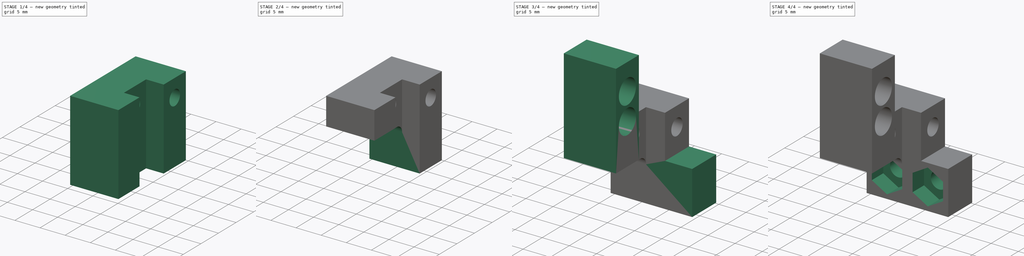
[diagram: build sequence overview — one tinted view per stage of 4, left to right]
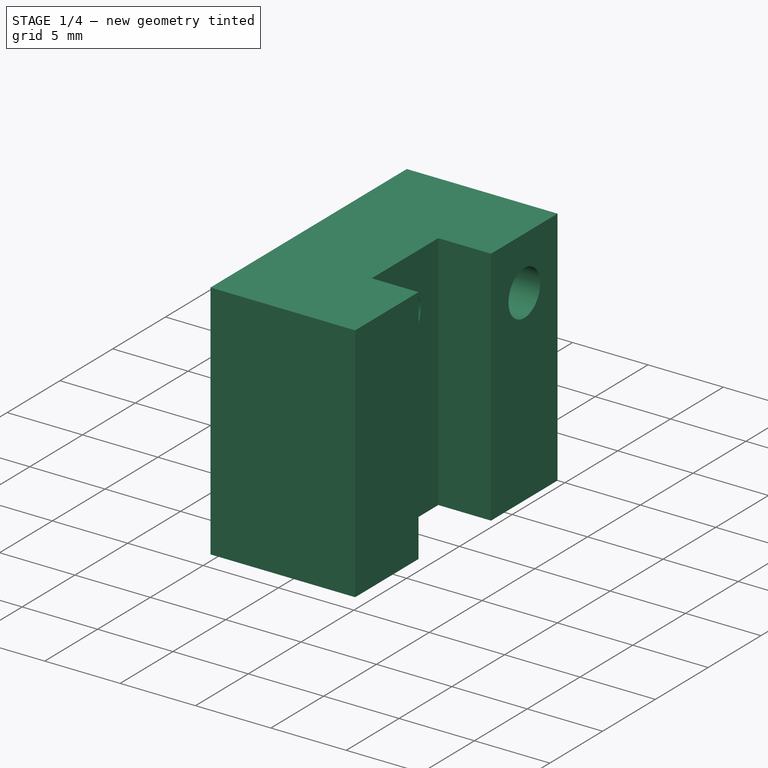
[diagram: stage 1 of 4 — iso view after this stage's code; geometry added in this stage tinted green]
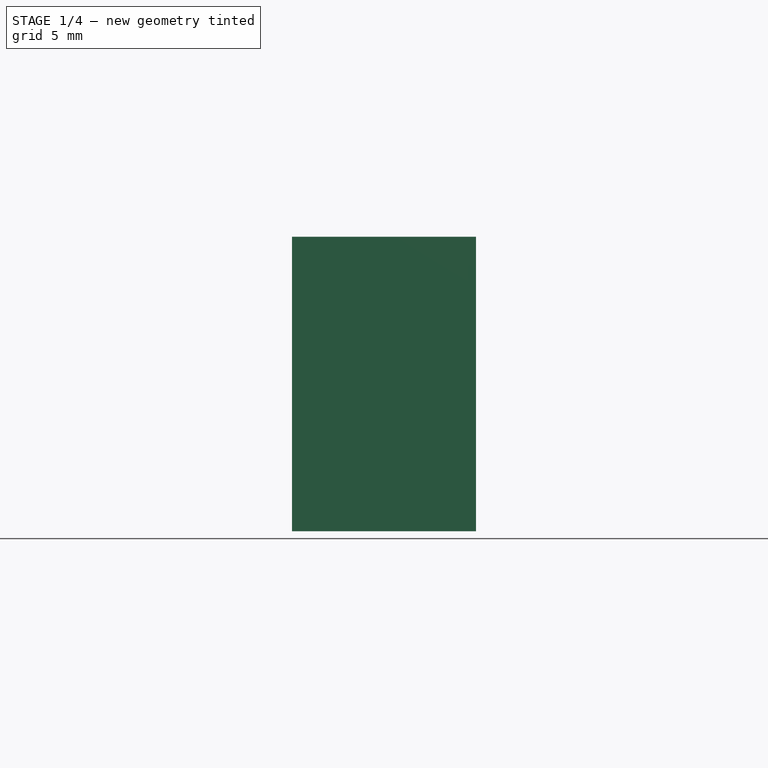
[diagram: stage 1 of 4 — front view after this stage's code; geometry added in this stage tinted green]
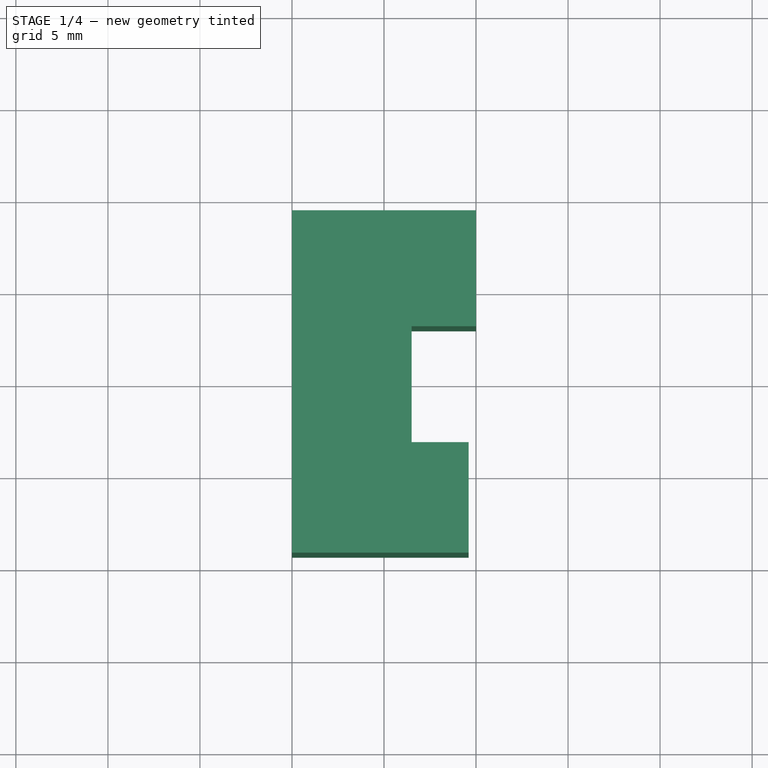
[diagram: stage 1 of 4 — top view after this stage's code; geometry added in this stage tinted green]
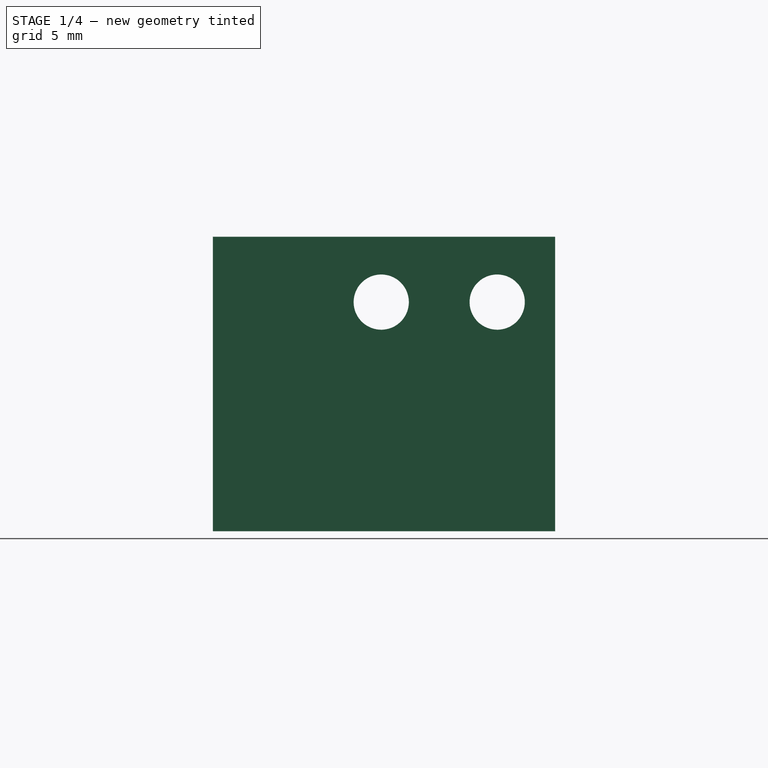
[diagram: stage 1 of 4 — right view after this stage's code; geometry added in this stage tinted green]
FCSTD DOCUMENT  (FreeCAD 0.19R24291 (Git))
Label: ri_sensor-support
License: All rights reserved
LicenseURL: http://en.wikipedia.org/wiki/All_rights_reserved
objects: Sketcher::SketchObject×10, PartDesign::Pocket×7, PartDesign::Pad×3, PartDesign::SubtractiveCylinder×2, PartDesign::Body×1, App::Part×1
note: 35 computed .brp shape members not serialized (recipe doc carries the construction recipe); baked Part::Feature solids carry a one-line shape summary decoded from their .brp

FEATURE [Sketcher::SketchObject] Sketch
  FullyConstrained = true
  MapMode = 5
  Support = -> [XY_Plane001]
  sketch-geometry (8):
    g0: LineSegment StartX=-5 StartY=9.3 StartZ=0 EndX=5 EndY=9.3 EndZ=0
    g1: LineSegment StartX=5 StartY=9.3 StartZ=0 EndX=5 EndY=3 EndZ=0
    g2: LineSegment StartX=5 StartY=3 StartZ=0 EndX=1.5 EndY=3 EndZ=0
    g3: LineSegment StartX=1.5 StartY=3 StartZ=0 EndX=1.5 EndY=-3.3 EndZ=0
    g4: LineSegment StartX=1.5 StartY=-3.3 StartZ=0 EndX=4.6 EndY=-3.3 EndZ=0
    g5: LineSegment StartX=4.6 StartY=-3.3 StartZ=0 EndX=4.6 EndY=-9.3 EndZ=0
    g6: LineSegment StartX=4.6 StartY=-9.3 StartZ=0 EndX=-5 EndY=-9.3 EndZ=0
    g7: LineSegment StartX=-5 StartY=-9.3 StartZ=0 EndX=-5 EndY=9.3 EndZ=0
  constraints (23):
    c: Horizontal(g0)
    c: Coincident(g0,g1)
    c: Vertical(g1)
    c: Coincident(g1,g2)
    c: Horizontal(g2)
    c: Coincident(g2,g3)
    c: Vertical(g3)
    c: Coincident(g3,g4)
    c: Horizontal(g4)
    c: Coincident(g4,g5)
    c: Vertical(g5)
    c: Coincident(g5,g6)
    c: Horizontal(g6)
    c: Coincident(g6,g7)
    c: Coincident(g7,g0)
    c: Vertical(g7)
    c: DistanceY(g1,g1) = 6.3
    c: DistanceY(g3,g3) = 6.3
    c: DistanceY(g5,g5) = 6
    c: DistanceX(g0,g0) = 10
    c: Symmetric(g0,g6,g-1)
    c: DistanceX(g2,g2) = 3.5
    c: DistanceX(g4,g4) = 3.1
FEATURE [PartDesign::Pad] Pad
  Direction = (0,0,-1)
  Length = 16
  Length2 = 100
  Profile = -> Sketch
  Refine = true
  Type = 0
  UseCustomVector = true
FEATURE [PartDesign::SubtractiveCylinder] Cylinder
  Angle = 360
  AttacherType = Attacher::AttachEngine3D
  AttachmentOffset = pos=(3.15,-3.55,-12) rot=(0,0,1;0rad)
  BaseFeature = -> Pad
  Height = 12
  MapMode = 7
  Placement = pos=(7,6.15,-3.55) rot=(0.57735,-0.57735,-0.57735;2.0944rad)
  Radius = 1.5
  Refine = true
  Support = -> [Pad]
FEATURE [PartDesign::SubtractiveCylinder] Cylinder001
  Angle = 360
  AttacherType = Attacher::AttachEngine3D
  AttachmentOffset = pos=(-3.15,-3.55,-12) rot=(0,0,1;0rad)
  BaseFeature = -> Cylinder
  Height = 12
  MapMode = 7
  Placement = pos=(-7,-0.15,-3.55) rot=(0.57735,0.57735,0.57735;2.0944rad)
  Radius = 1.5
  Refine = true
  Support = -> [Cylinder]
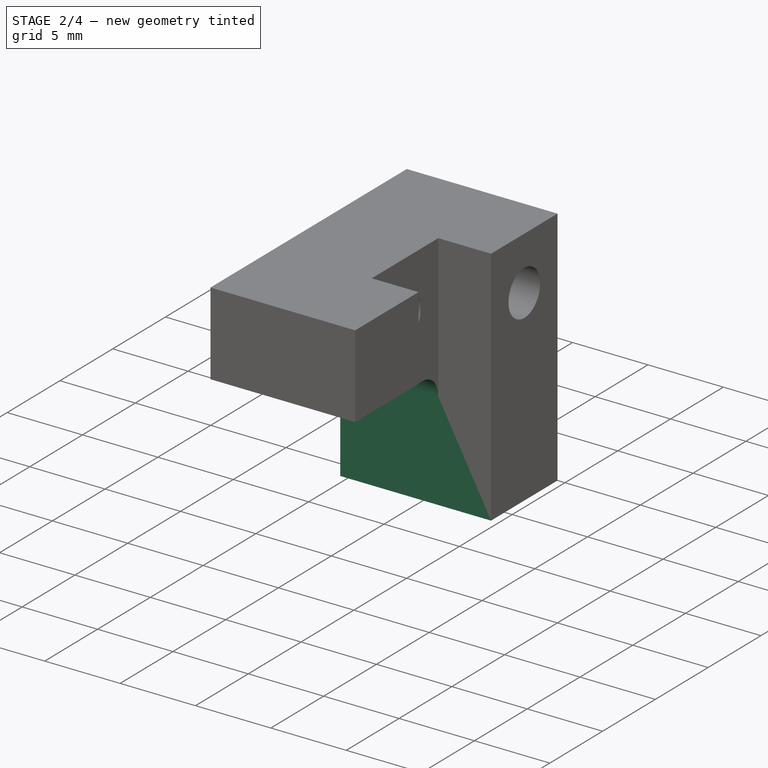
[diagram: stage 2 of 4 — iso view after this stage's code; geometry added in this stage tinted green]
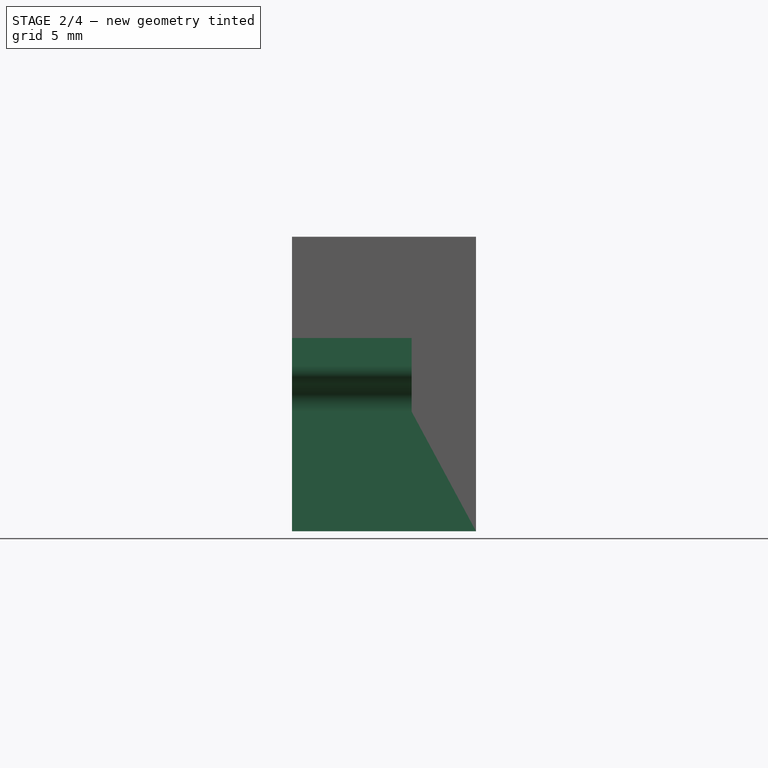
[diagram: stage 2 of 4 — front view after this stage's code; geometry added in this stage tinted green]
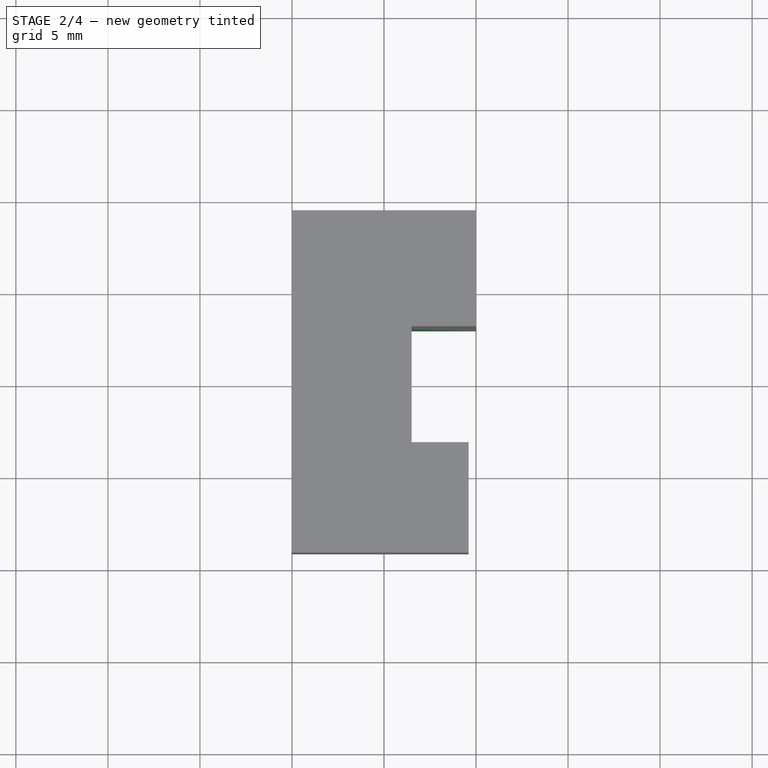
[diagram: stage 2 of 4 — top view after this stage's code; geometry added in this stage tinted green]
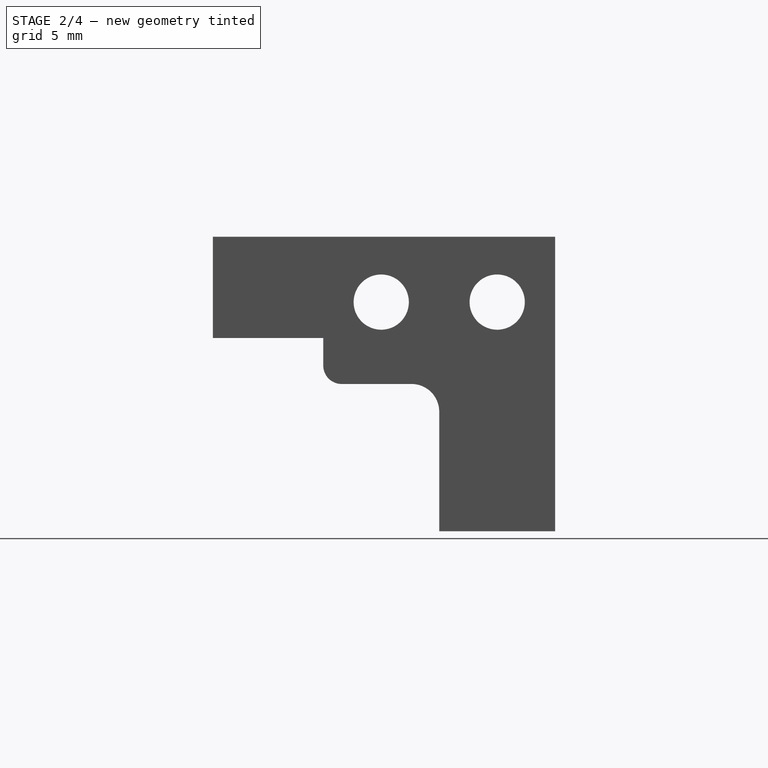
[diagram: stage 2 of 4 — right view after this stage's code; geometry added in this stage tinted green]
FEATURE [Sketcher::SketchObject] Sketch001
  FullyConstrained = true
  MapMode = 11
  Placement = pos=(-5,6.15,-3.55) rot=(0,-1,0;1.5708rad)
  Support = -> [Cylinder001]
  sketch-geometry (7):
    g0: LineSegment StartX=1.58771 StartY=-2.75 StartZ=0 EndX=3.17543 EndY=1.4229e-12 EndZ=0
    g1: LineSegment StartX=3.17543 StartY=1.4229e-12 StartZ=0 EndX=1.58771 EndY=2.75 EndZ=0
    g2: LineSegment StartX=1.58771 StartY=2.75 StartZ=0 EndX=-1.58771 EndY=2.75 EndZ=0
    g3: LineSegment StartX=-1.58771 StartY=2.75 StartZ=0 EndX=-3.17543 EndY=1.4224e-12 EndZ=0
    g4: LineSegment StartX=-3.17543 StartY=1.4224e-12 StartZ=0 EndX=-1.58771 EndY=-2.75 EndZ=0
    g5: LineSegment StartX=-1.58771 StartY=-2.75 StartZ=0 EndX=1.58771 EndY=-2.75 EndZ=0
    g6: Circle CenterX=0 CenterY=0 CenterZ=0 NormalX=0 NormalY=0 NormalZ=1 AngleXU=0 Radius=3.17543
  constraints (16):
    c: Coincident(g0,g1)
    c: Coincident(g1,g2)
    c: Coincident(g2,g3)
    c: Coincident(g3,g4)
    c: Coincident(g4,g5)
    c: Coincident(g5,g0)
    c: Equal(g0, g1-g5) x5
    c: PointOnObject(g0,g6)
    c: PointOnObject(g1,g6)
    c: PointOnObject(g2,g6)
    c: PointOnObject(g3,g6)
    c: PointOnObject(g4,g6)
    c: PointOnObject(g5,g6)
    c: Coincident(g6,g-1)
    c: Horizontal(g2)
    c: DistanceY(g0,g1) = 5.5
FEATURE [PartDesign::Pocket] Pocket
  BaseFeature = -> Cylinder001
  Length = 5
  Length2 = 100
  Placement = pos=(-7,-0.15,-3.55) rot=(0.57735,0.57735,0.57735;2.0944rad)
  Profile = -> Sketch001
  Refine = true
  Type = 0
FEATURE [Sketcher::SketchObject] Sketch002
  FullyConstrained = true
  MapMode = 11
  Placement = pos=(-5,-0.15,-3.55) rot=(0.707107,0,0.707107;3.14159rad)
  Support = -> [Pocket]
  sketch-geometry (7):
    g0: LineSegment StartX=1.58771 StartY=-2.75 StartZ=0 EndX=3.17543 EndY=1.4229e-12 EndZ=0
    g1: LineSegment StartX=3.17543 StartY=1.4229e-12 StartZ=0 EndX=1.58771 EndY=2.75 EndZ=0
    g2: LineSegment StartX=1.58771 StartY=2.75 StartZ=0 EndX=-1.58771 EndY=2.75 EndZ=0
    g3: LineSegment StartX=-1.58771 StartY=2.75 StartZ=0 EndX=-3.17543 EndY=1.4224e-12 EndZ=0
    g4: LineSegment StartX=-3.17543 StartY=1.4224e-12 StartZ=0 EndX=-1.58771 EndY=-2.75 EndZ=0
    g5: LineSegment StartX=-1.58771 StartY=-2.75 StartZ=0 EndX=1.58771 EndY=-2.75 EndZ=0
    g6: Circle CenterX=0 CenterY=0 CenterZ=0 NormalX=0 NormalY=0 NormalZ=1 AngleXU=0 Radius=3.17543
  constraints (16):
    c: Coincident(g0,g1)
    c: Coincident(g1,g2)
    c: Coincident(g2,g3)
    c: Coincident(g3,g4)
    c: Coincident(g4,g5)
    c: Coincident(g5,g0)
    c: Equal(g0, g1-g5) x5
    c: PointOnObject(g0,g6)
    c: PointOnObject(g1,g6)
    c: PointOnObject(g2,g6)
    c: PointOnObject(g3,g6)
    c: PointOnObject(g4,g6)
    c: PointOnObject(g5,g6)
    c: Coincident(g6,g-1)
    c: Horizontal(g2)
    c: DistanceY(g0,g1) = 5.5
FEATURE [PartDesign::Pocket] Pocket001
  BaseFeature = -> Pocket
  Length = 3.5
  Length2 = 100
  Placement = pos=(-7,-0.15,-3.55) rot=(0.57735,0.57735,0.57735;2.0944rad)
  Profile = -> Sketch002
  Refine = true
  Reversed = true
  Type = 0
FEATURE [Sketcher::SketchObject] Sketch003
  ExternalGeometry = -> [Pocket001]
  FullyConstrained = true
  MapMode = 5
  Placement = pos=(-5,-0.15,-3.55) rot=(0.57735,0.57735,-0.57735;4.18879rad)
  Support = -> [Pocket001]
  sketch-geometry (11):
    g0: LineSegment StartX=3.15 StartY=12.45 StartZ=0 EndX=3.15 EndY=5.95 EndZ=0
    g1: LineSegment StartX=1.65 StartY=4.45 StartZ=0 EndX=-2.15 EndY=4.45 EndZ=0
    g2: LineSegment StartX=-3.15 StartY=3.45 StartZ=0 EndX=-3.15 EndY=1.95 EndZ=0
    g3: LineSegment StartX=-3.15 StartY=1.95 StartZ=0 EndX=-9.15 EndY=1.95 EndZ=0
    g4: LineSegment StartX=-9.15 StartY=1.95 StartZ=0 EndX=-9.15 EndY=12.45 EndZ=0
    g5: LineSegment StartX=-9.15 StartY=12.45 StartZ=0 EndX=3.15 EndY=12.45 EndZ=0
    g6: ArcOfCircle CenterX=1.65 CenterY=5.95 CenterZ=0 NormalX=0 NormalY=0 NormalZ=1 AngleXU=0 Radius=1.5 StartAngle=4.71239 EndAngle=6.28319
    g7: GeomPoint X=3.15 Y=4.45 Z=0
    g8: ArcOfCircle CenterX=-2.15 CenterY=3.45 CenterZ=0 NormalX=0 NormalY=0 NormalZ=1 AngleXU=0 Radius=1 StartAngle=1.5708 EndAngle=3.14159
    g9: GeomPoint X=-3.15 Y=4.45 Z=0
    g10: GeomPoint X=-3.15 Y=1.95 Z=0
  constraints (26):
    c: Vertical(g0)
    c: Horizontal(g1)
    c: Vertical(g2)
    c: Horizontal(g3)
    c: Coincident(g3,g4)
    c: Coincident(g4,g5)
    c: Coincident(g5,g0)
    c: Tangent(g5,g-3)
    c: Tangent(g4,g-4)
    c: DistanceX(g0,g-5) = 6.3
    c: DistanceY(g-4,g3) = 5.5
    c: DistanceY(g-4,g9) = 8
    c: DistanceX(g3,g9) = 6
    c: PointOnObject(g7,g1)
    c: PointOnObject(g7,g0)
    c: Tangent(g1,g6) = 1.5708
    c: Tangent(g0,g6) = 1.5708
    c: PointOnObject(g9,g1)
    c: PointOnObject(g9,g2)
    c: Tangent(g1,g8) = -1.5708
    c: Tangent(g2,g8) = -1.5708
    c: PointOnObject(g10,g3)
    c: PointOnObject(g10,g2)
    c: Radius(g6) = 1.5
    c: Radius(g8) = 1
    c: Coincident(g2,g3)
FEATURE [PartDesign::Pocket] Pocket002
  BaseFeature = -> Pocket001
  Length = 5
  Length2 = 100
  Placement = pos=(-7,-0.15,-3.55) rot=(0.57735,0.57735,0.57735;2.0944rad)
  Profile = -> Sketch003
  Refine = true
  Type = 1
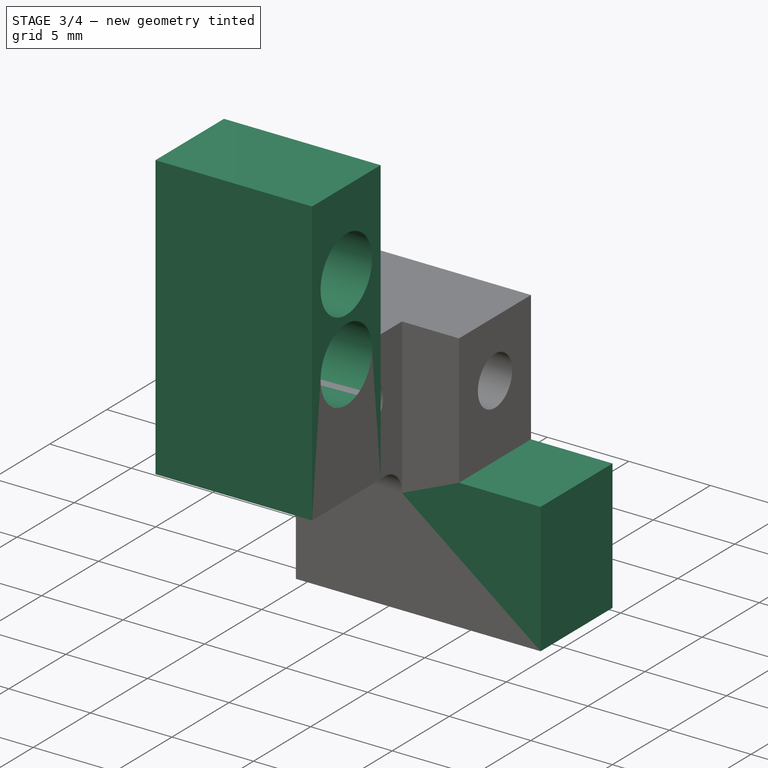
[diagram: stage 3 of 4 — iso view after this stage's code; geometry added in this stage tinted green]
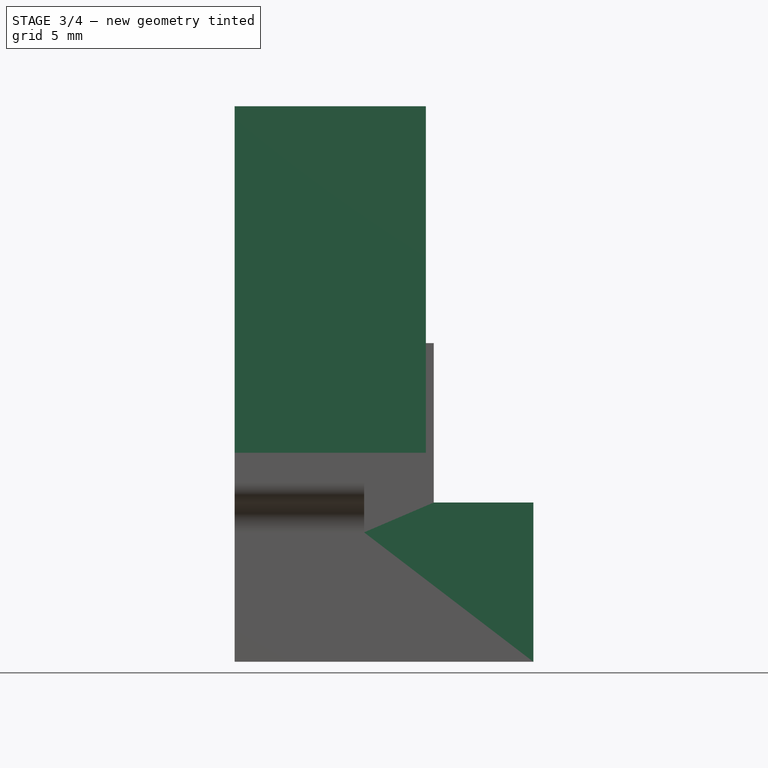
[diagram: stage 3 of 4 — front view after this stage's code; geometry added in this stage tinted green]
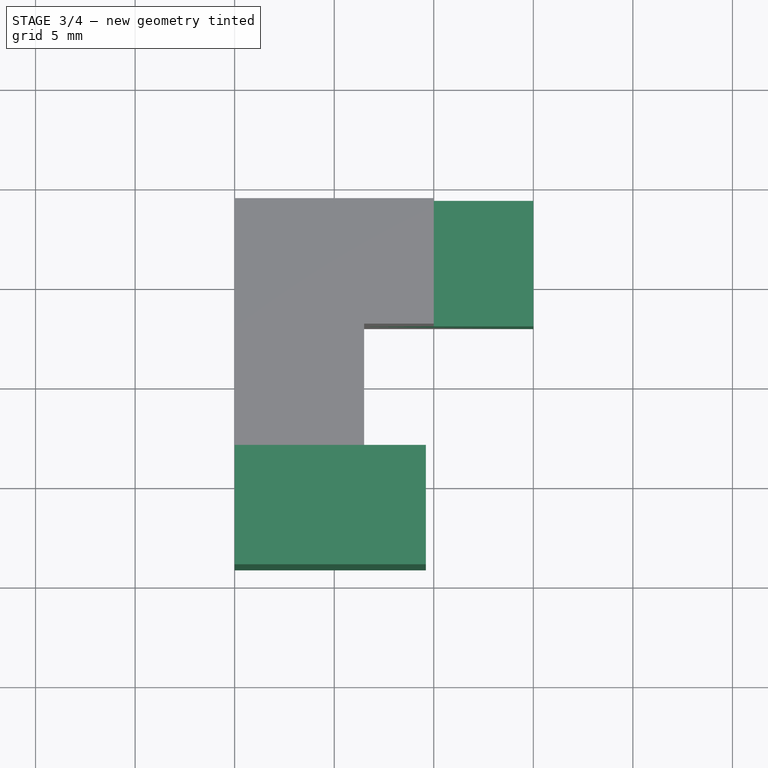
[diagram: stage 3 of 4 — top view after this stage's code; geometry added in this stage tinted green]
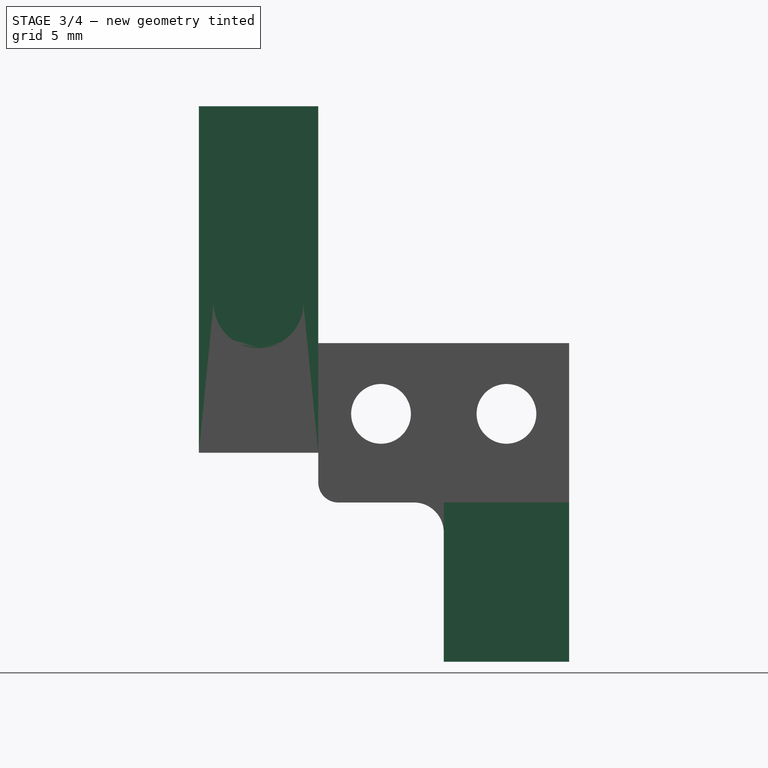
[diagram: stage 3 of 4 — right view after this stage's code; geometry added in this stage tinted green]
FEATURE [Sketcher::SketchObject] Sketch004
  ExternalGeometry = -> [Pocket002]
  FullyConstrained = true
  MapMode = 5
  Placement = pos=(-7,-0.15,9e-16) rot=(0,0,-1;1.5708rad)
  Support = -> [Pocket002]
  sketch-geometry (4):
    g0: LineSegment StartX=3.15 StartY=11.6 StartZ=0 EndX=9.15 EndY=11.6 EndZ=0
    g1: LineSegment StartX=9.15 StartY=11.6 StartZ=0 EndX=9.15 EndY=2 EndZ=0
    g2: LineSegment StartX=9.15 StartY=2 StartZ=0 EndX=3.15 EndY=2 EndZ=0
    g3: LineSegment StartX=3.15 StartY=2 StartZ=0 EndX=3.15 EndY=11.6 EndZ=0
  constraints (10):
    c: Coincident(g0,g1)
    c: Coincident(g1,g2)
    c: Coincident(g2,g3)
    c: Coincident(g3,g0)
    c: Horizontal(g0)
    c: Horizontal(g2)
    c: Vertical(g1)
    c: Vertical(g3)
    c: Coincident(g0,g-4)
    c: Coincident(g1,g-6)
FEATURE [PartDesign::Pad] Pad001
  BaseFeature = -> Pocket002
  Direction = (1,1,1)
  Length = 11.9
  Length2 = 100
  Placement = pos=(-7,-0.15,-3.55) rot=(0.57735,0.57735,0.57735;2.0944rad)
  Profile = -> Sketch004
  Refine = true
  Type = 0
FEATURE [Sketcher::SketchObject] Sketch005
  ExternalGeometry = -> [Pad001]
  FullyConstrained = true
  MapMode = 5
  Placement = pos=(4.6,-0.15,-3.55) rot=(0.57735,0.57735,0.57735;2.0944rad)
  Support = -> [Pad001]
  sketch-geometry (4):
    g0: Circle CenterX=-6.15 CenterY=5.55 CenterZ=0 NormalX=0 NormalY=0 NormalZ=1 AngleXU=0 Radius=2.25
    g1: Circle CenterX=-6.15 CenterY=10.55 CenterZ=0 NormalX=0 NormalY=0 NormalZ=1 AngleXU=0 Radius=2.25
    g2: GeomPoint X=-6.15 Y=15.45 Z=0
    g3: GeomPoint X=-6.15 Y=8.05 Z=0
  constraints (8):
    c: Equal(g1,g0)
    c: Diameter(g1) = 4.5
    c: DistanceX(g1,g0) = 0
    c: Symmetric(g-4,g-5,g2)
    c: DistanceX(g1,g2) = 0
    c: DistanceY(g0,g1) = 5
    c: Symmetric(g1,g0,g3)
    c: DistanceY(g-3,g3) = 4.5
FEATURE [PartDesign::Pocket] Pocket003
  BaseFeature = -> Pad001
  Length = 5
  Length2 = 100
  Placement = pos=(-7,-0.15,-3.55) rot=(0.57735,0.57735,0.57735;2.0944rad)
  Profile = -> Sketch005
  Refine = true
  Type = 0
FEATURE [Sketcher::SketchObject] Sketch006
  ExternalGeometry = -> [Pocket003]
  FullyConstrained = true
  MapMode = 5
  Placement = pos=(5,-0.15,-3.55) rot=(0.57735,0.57735,0.57735;2.0944rad)
  Support = -> [Pocket003]
  sketch-geometry (4):
    g0: LineSegment StartX=9.45 StartY=-12.45 StartZ=0 EndX=3.15 EndY=-12.45 EndZ=0
    g1: LineSegment StartX=3.15 StartY=-12.45 StartZ=0 EndX=3.15 EndY=-4.45 EndZ=0
    g2: LineSegment StartX=3.15 StartY=-4.45 StartZ=0 EndX=9.45 EndY=-4.45 EndZ=0
    g3: LineSegment StartX=9.45 StartY=-4.45 StartZ=0 EndX=9.45 EndY=-12.45 EndZ=0
  constraints (11):
    c: Coincident(g0,g1)
    c: Coincident(g1,g2)
    c: Coincident(g2,g3)
    c: Coincident(g3,g0)
    c: Horizontal(g0)
    c: Horizontal(g2)
    c: Vertical(g1)
    c: Vertical(g3)
    c: Coincident(g0,g-6)
    c: PointOnObject(g1,g-4)
    c: PointOnObject(g1,g-3)
FEATURE [PartDesign::Pad] Pad002
  BaseFeature = -> Pocket003
  Direction = (1,1,1)
  Length = 5
  Length2 = 100
  Placement = pos=(-7,-0.15,-3.55) rot=(0.57735,0.57735,0.57735;2.0944rad)
  Profile = -> Sketch006
  Refine = true
  Type = 0
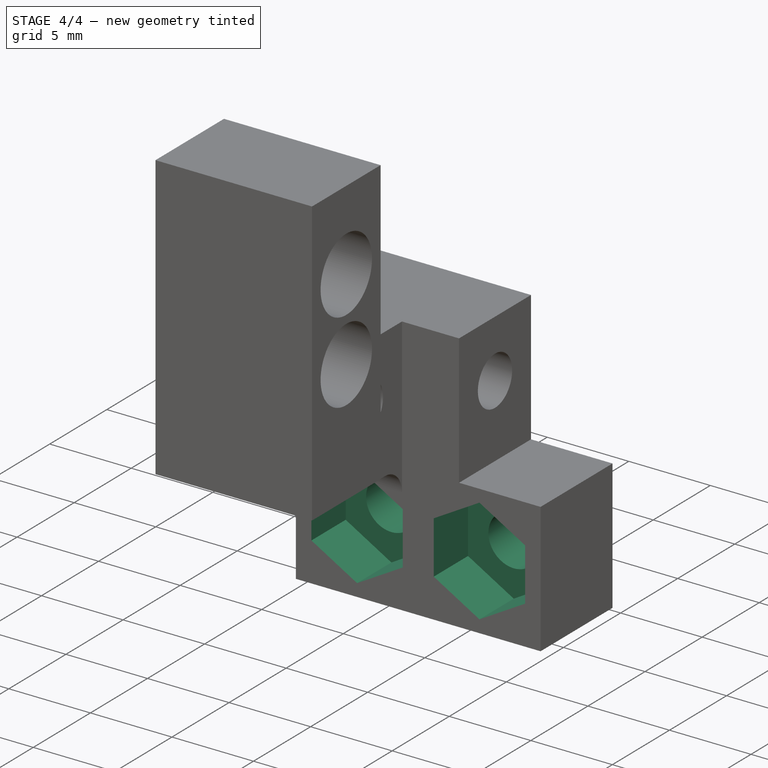
[diagram: stage 4 of 4 — iso view after this stage's code; geometry added in this stage tinted green]
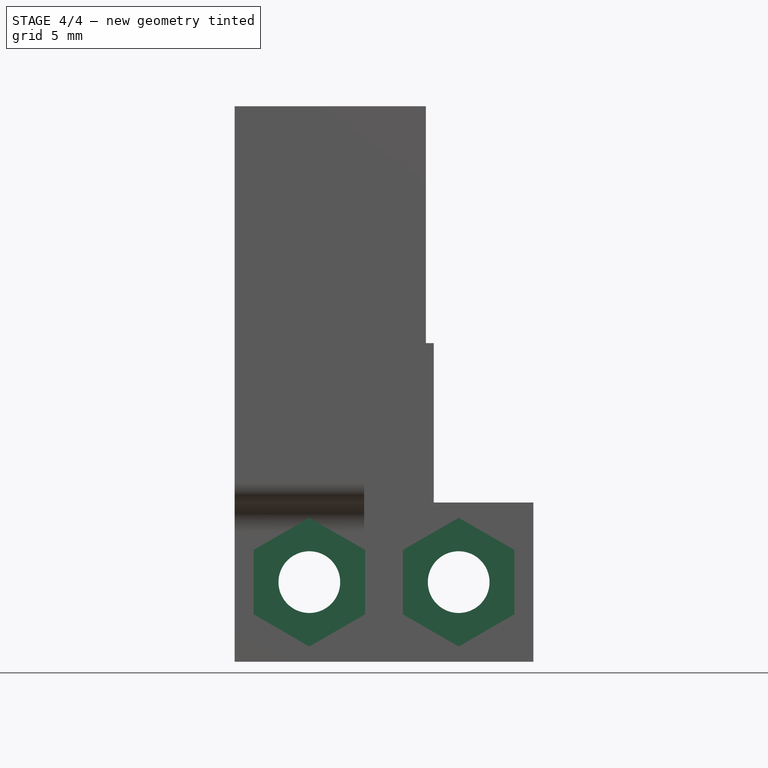
[diagram: stage 4 of 4 — front view after this stage's code; geometry added in this stage tinted green]
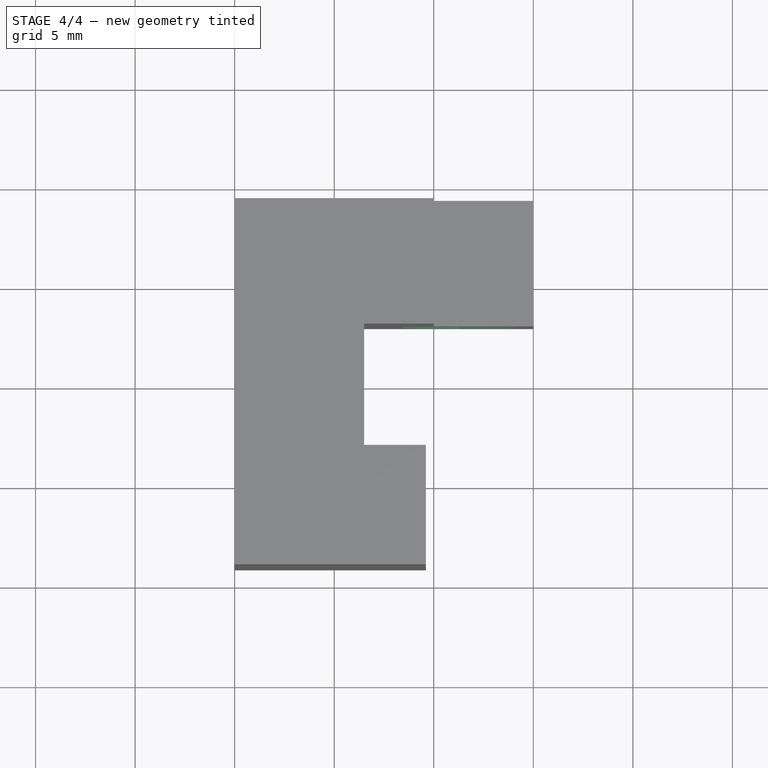
[diagram: stage 4 of 4 — top view after this stage's code; geometry added in this stage tinted green]
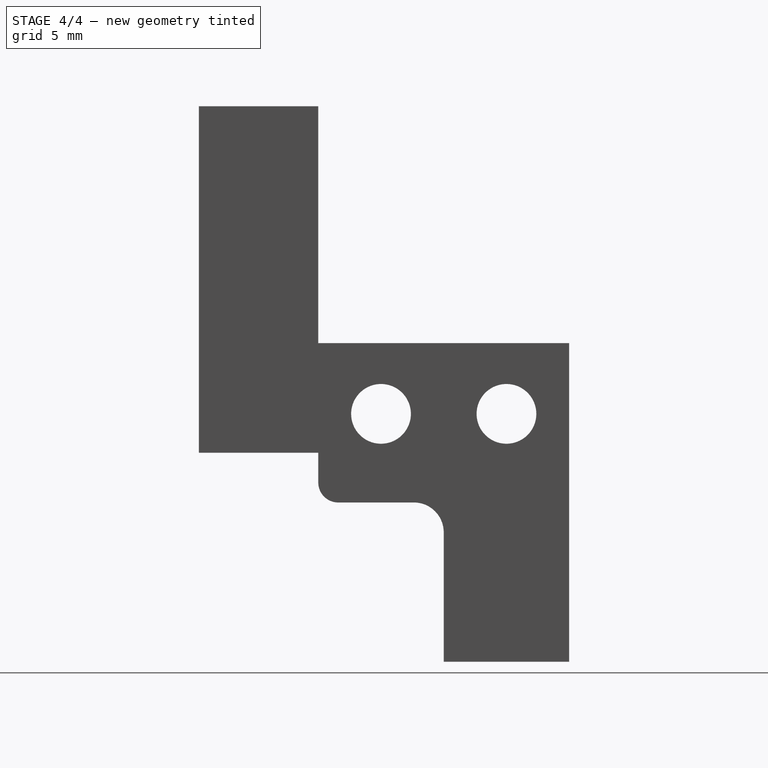
[diagram: stage 4 of 4 — right view after this stage's code; geometry added in this stage tinted green]
FEATURE [Sketcher::SketchObject] Sketch007
  ExternalGeometry = -> [Pad002]
  FullyConstrained = true
  MapMode = 5
  Placement = pos=(-7,9.3,-3.55) rot=(0.57735,0.57735,0.57735;4.18879rad)
  Support = -> [Pad002]
  sketch-geometry (5):
    g0: Circle CenterX=-8.45 CenterY=13.25 CenterZ=0 NormalX=0 NormalY=0 NormalZ=1 AngleXU=0 Radius=1.55
    g1: Circle CenterX=-8.45 CenterY=5.75 CenterZ=0 NormalX=0 NormalY=0 NormalZ=1 AngleXU=0 Radius=1.55
    g2: GeomPoint X=-8.45 Y=17 Z=0
    g3: GeomPoint X=-8.45 Y=9.5 Z=0
    g4: GeomPoint X=-12.45 Y=9.5 Z=0
  constraints (9):
    c: DistanceX(g0,g1) = 0
    c: Symmetric(g-3,g-3,g2)
    c: DistanceX(g0,g2) = 0
    c: Equal(g0,g1)
    c: Diameter(g1) = 3.1
    c: Symmetric(g-3,g-4,g4)
    c: Symmetric(g0,g1,g3)
    c: DistanceY(g3,g4) = 0
    c: DistanceY(g1,g0) = 7.5
FEATURE [PartDesign::Pocket] Pocket004
  BaseFeature = -> Pad002
  Length = 5
  Length2 = 100
  Placement = pos=(-7,-0.15,-3.55) rot=(0.57735,0.57735,0.57735;2.0944rad)
  Profile = -> Sketch007
  Refine = true
  Type = 1
FEATURE [Sketcher::SketchObject] Sketch008
  FullyConstrained = true
  MapMode = 11
  Placement = pos=(-1.25,3,-12) rot=(-1,0,0;1.5708rad)
  Support = -> [Pocket004]
  sketch-geometry (7):
    g0: LineSegment StartX=2.8 StartY=1.61658 StartZ=0 EndX=1.3913e-12 EndY=3.23316 EndZ=0
    g1: LineSegment StartX=1.3913e-12 StartY=3.23316 StartZ=0 EndX=-2.8 EndY=1.61658 EndZ=0
    g2: LineSegment StartX=-2.8 StartY=1.61658 StartZ=0 EndX=-2.8 EndY=-1.61658 EndZ=0
    g3: LineSegment StartX=-2.8 StartY=-1.61658 StartZ=0 EndX=1.3904e-12 EndY=-3.23316 EndZ=0
    g4: LineSegment StartX=1.3904e-12 StartY=-3.23316 StartZ=0 EndX=2.8 EndY=-1.61658 EndZ=0
    g5: LineSegment StartX=2.8 StartY=-1.61658 StartZ=0 EndX=2.8 EndY=1.61658 EndZ=0
    g6: Circle CenterX=0 CenterY=0 CenterZ=0 NormalX=0 NormalY=0 NormalZ=1 AngleXU=0 Radius=3.23316
  constraints (16):
    c: Coincident(g0,g1)
    c: Coincident(g1,g2)
    c: Coincident(g2,g3)
    c: Coincident(g3,g4)
    c: Coincident(g4,g5)
    c: Coincident(g5,g0)
    c: Equal(g0, g1-g5) x5
    c: PointOnObject(g0,g6)
    c: PointOnObject(g1,g6)
    c: PointOnObject(g2,g6)
    c: PointOnObject(g3,g6)
    c: PointOnObject(g4,g6)
    c: PointOnObject(g5,g6)
    c: Coincident(g6,g-1)
    c: Vertical(g5)
    c: DistanceX(g1,g0) = 5.6
FEATURE [PartDesign::Pocket] Pocket005
  BaseFeature = -> Pocket004
  Length = 3
  Length2 = 3
  Placement = pos=(-7,-0.15,-3.55) rot=(0.57735,0.57735,0.57735;2.0944rad)
  Profile = -> Sketch008
  Refine = true
  Reversed = true
  Type = 4
FEATURE [Sketcher::SketchObject] Sketch009
  FullyConstrained = true
  MapMode = 11
  Placement = pos=(6.25,3,-12) rot=(-1,0,0;1.5708rad)
  Support = -> [Pocket005]
  sketch-geometry (7):
    g0: LineSegment StartX=2.8 StartY=1.61658 StartZ=0 EndX=-1.3909e-12 EndY=3.23316 EndZ=0
    g1: LineSegment StartX=-1.3909e-12 StartY=3.23316 StartZ=0 EndX=-2.8 EndY=1.61658 EndZ=0
    g2: LineSegment StartX=-2.8 StartY=1.61658 StartZ=0 EndX=-2.8 EndY=-1.61658 EndZ=0
    g3: LineSegment StartX=-2.8 StartY=-1.61658 StartZ=0 EndX=-1.3909e-12 EndY=-3.23316 EndZ=0
    g4: LineSegment StartX=-1.3909e-12 StartY=-3.23316 StartZ=0 EndX=2.8 EndY=-1.61658 EndZ=0
    g5: LineSegment StartX=2.8 StartY=-1.61658 StartZ=0 EndX=2.8 EndY=1.61658 EndZ=0
    g6: Circle CenterX=0 CenterY=0 CenterZ=0 NormalX=0 NormalY=0 NormalZ=1 AngleXU=0 Radius=3.23316
  constraints (16):
    c: Coincident(g0,g1)
    c: Coincident(g1,g2)
    c: Coincident(g2,g3)
    c: Coincident(g3,g4)
    c: Coincident(g4,g5)
    c: Coincident(g5,g0)
    c: Equal(g0, g1-g5) x5
    c: PointOnObject(g0,g6)
    c: PointOnObject(g1,g6)
    c: PointOnObject(g2,g6)
    c: PointOnObject(g3,g6)
    c: PointOnObject(g4,g6)
    c: PointOnObject(g5,g6)
    c: Coincident(g6,g-1)
    c: Vertical(g2)
    c: DistanceX(g2,g4) = 5.6
FEATURE [PartDesign::Pocket] Pocket006
  BaseFeature = -> Pocket005
  Length = 3
  Length2 = 100
  Placement = pos=(-7,-0.15,-3.55) rot=(0.57735,0.57735,0.57735;2.0944rad)
  Profile = -> Sketch009
  Refine = true
  Reversed = true
  Type = 0
FEATURE [PartDesign::Body] Body
  Group = -> [Sketch,Pad,Cylinder,Cylinder001,Sketch001,Pocket,Sketch002,Pocket001,Sketch003,Pocket002,Sketch004,Pad001,Sketch005,Pocket003,Sketch006,Pad002,Sketch007,Pocket004,Sketch008,Pocket005,Sketch009,Pocket006]
  Origin = -> Origin001
  Tip = -> Pocket006
FEATURE [App::Part] Part
  Group = -> [Body]
  Origin = -> Origin
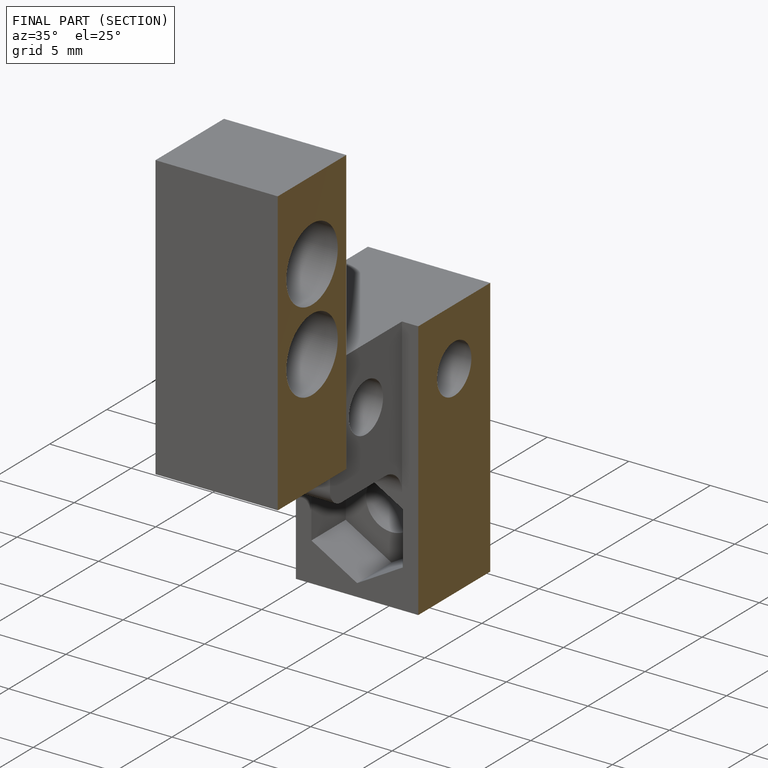
[diagram: finished part — half-section view (interior)]
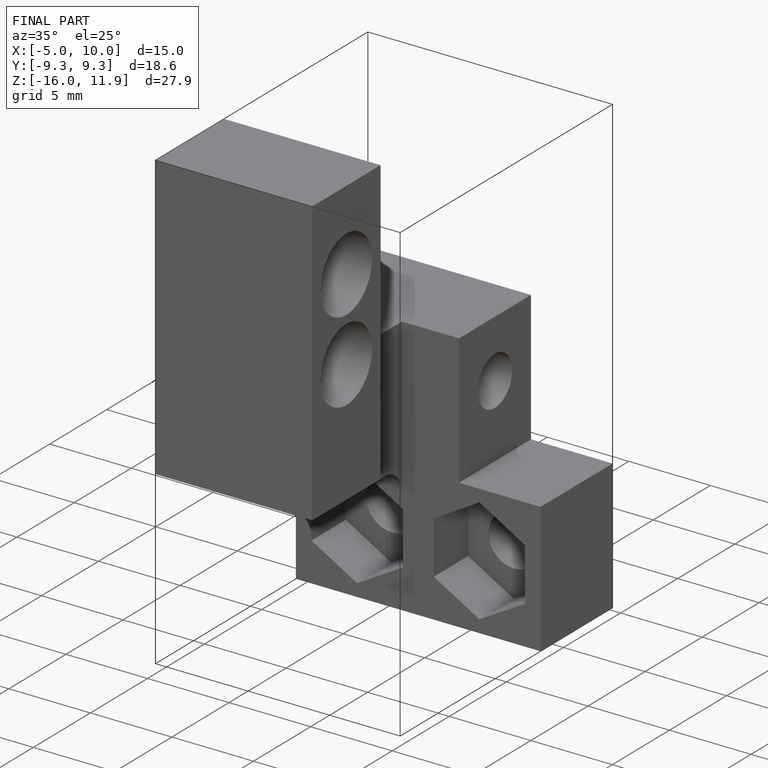
[diagram: finished part — iso view with bounding-box wireframe]
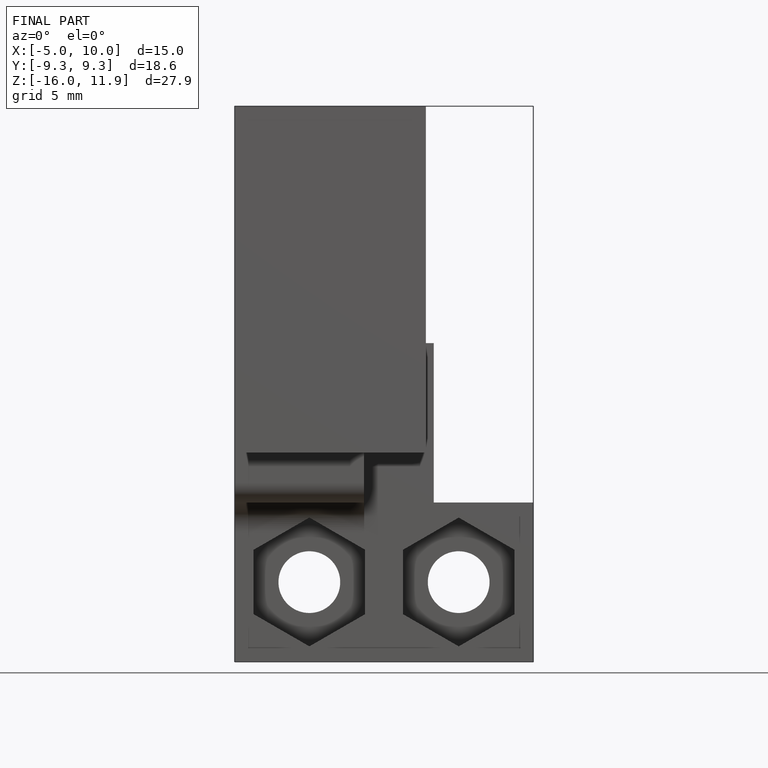
[diagram: finished part — front view with bounding-box wireframe]
